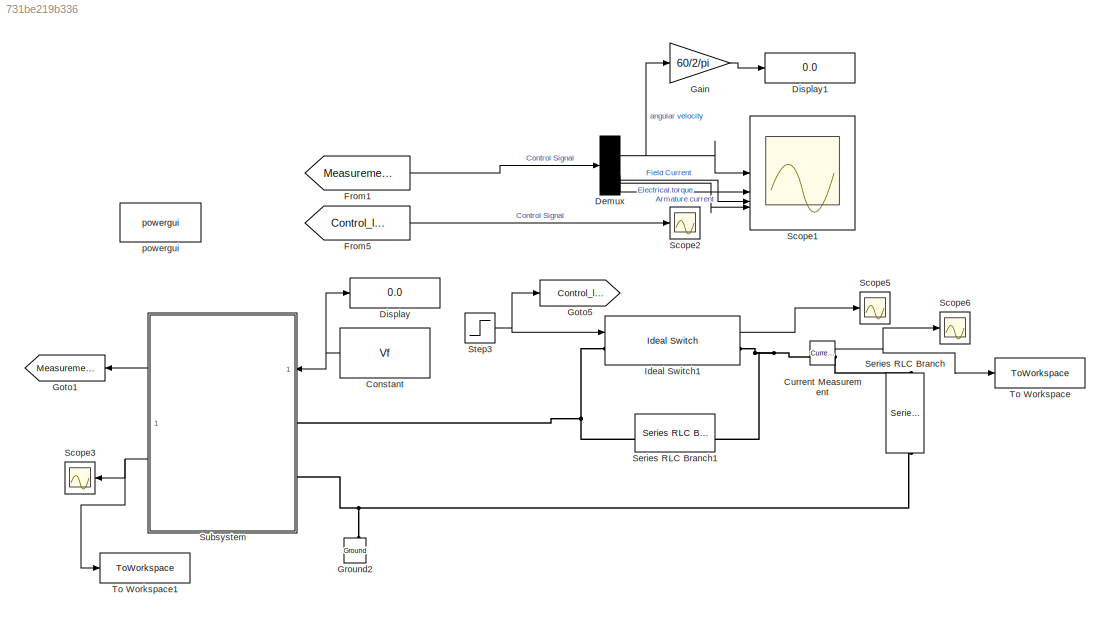
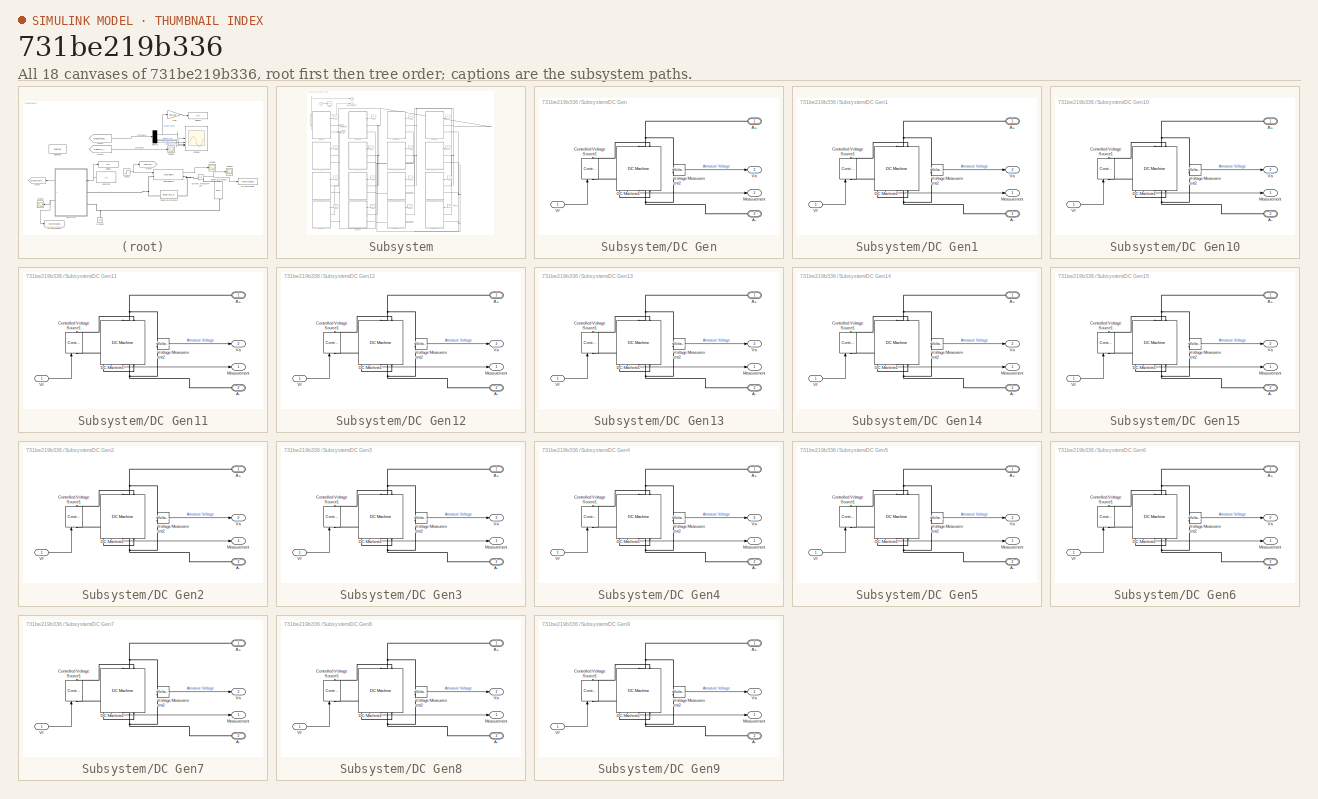
[diagram: thumbnail index - all 18 canvases of the model, root first then tree order]
MODEL slx_731be219b336
KIND model
CONFIG AbsTol = auto
CONFIG EnableMultiTasking = off
CONFIG FixedStep = auto
CONFIG MaxStep = auto
CONFIG MinStep = auto
CONFIG RelTol = 1e-3
CONFIG SampleTimeConstraint = Unconstrained
CONFIG SolverName = VariableStepAuto
CONFIG StartTime = 0.0
CONFIG StopTime = 30
BLOCK [Constant] Constant
  NameLocation = top
  Value = Vf
BLOCK [Reference] Current Measurement  REF=spsCurrentMeasurementLib/Current Measurement
  LibrarySourceBlock = sps_lib/Sensors and Measurements/Current Measurement
  SourceBlock = spsCurrentMeasurementLib/Current Measurement
  SourceType = Current Measurement
  UserDataPersistent = on
BLOCK [Demux] Demux
BLOCK [Display] Display
  Decimation = 1
BLOCK [Display] Display1
  Decimation = 1
BLOCK [From] From1
  GotoTag = Measurements
BLOCK [From] From5
  GotoTag = Control_load
BLOCK [Gain] Gain
  Gain = 60/2/pi
BLOCK [Goto] Goto1
  GotoTag = Measurements
  NameLocation = top
BLOCK [Goto] Goto5
  GotoTag = Control_load
BLOCK [Reference] Ground2  REF=spsGroundLib/Ground
  LibrarySourceBlock = sps_lib/Utilities/Ground
  NameLocation = right
  SourceBlock = spsGroundLib/Ground
  SourceType = Ground
BLOCK [Reference] Ideal Switch1  REF=spsIdealSwitchLib/Ideal Switch
  LibrarySourceBlock = sps_lib/Power Electronics/Ideal Switch
  SourceBlock = spsIdealSwitchLib/Ideal Switch
  SourceType = Ideal Switch
BLOCK [Scope] Scope1
  Floating = off
  NumInputPorts = 4
  ScopeSpecificationString = Simulink.scopes.TimeScopeBlockCfg('CurrentConfiguration', extmgr.ConfigurationSet(extmgr.Configuration('Core','General UI',true),extmgr.Configuration('Core','Source UI',true),extmgr.Configuration('Sources','WiredSimulink',true,'DataLoggingVariableName','ScopeData3'),extmgr.Configuration('Visuals','Time Domain',true,'SerializedDisplays',{struct('MinYLimReal','-23.9523','MaxYLimReal','235.37193','YL...<+3595ch>
BLOCK [Scope] Scope2
  Floating = off
  NumInputPorts = 1
  ScopeSpecificationString = Simulink.scopes.TimeScopeBlockCfg('CurrentConfiguration', extmgr.ConfigurationSet(extmgr.Configuration('Core','General UI',true),extmgr.Configuration('Core','Source UI',true),extmgr.Configuration('Sources','WiredSimulink',true),extmgr.Configuration('Visuals','Time Domain',true,'SerializedDisplays',{struct('MinYLimReal','-0.125','MaxYLimReal','1.125','YLabelReal','','MinYLimMag','0.00000','MaxYLimM...<+1395ch>
BLOCK [Scope] Scope3
  Floating = off
  NameLocation = top
  NumInputPorts = 1
  ScopeSpecificationString = Simulink.scopes.TimeScopeBlockCfg('CurrentConfiguration', extmgr.ConfigurationSet(extmgr.Configuration('Core','General UI',true),extmgr.Configuration('Core','Source UI',true),extmgr.Configuration('Sources','WiredSimulink',true,'DataLoggingVariableName','ScopeData4'),extmgr.Configuration('Visuals','Time Domain',true,'SerializedDisplays',{struct('MinYLimReal','-156.18825','MaxYLimReal','1405.69425',...<+1455ch>
BLOCK [Scope] Scope5
  Floating = off
  NumInputPorts = 1
  ScopeSpecificationString = Simulink.scopes.TimeScopeBlockCfg('CurrentConfiguration', extmgr.ConfigurationSet(extmgr.Configuration('Core','General UI',true),extmgr.Configuration('Core','Source UI',true),extmgr.Configuration('Sources','WiredSimulink',true,'DataLoggingVariableName','ScopeData1'),extmgr.Configuration('Visuals','Time Domain',true,'SerializedDisplays',{struct('MinYLimReal','-125.39667','MaxYLimReal','1128.57','YL...<+2131ch>
BLOCK [Scope] Scope6
  Floating = off
  NumInputPorts = 1
  ScopeSpecificationString = Simulink.scopes.TimeScopeBlockCfg('CurrentConfiguration', extmgr.ConfigurationSet(extmgr.Configuration('Core','General UI',true),extmgr.Configuration('Core','Source UI',true),extmgr.Configuration('Sources','WiredSimulink',true,'DataLoggingVariableName','ScopeData2'),extmgr.Configuration('Visuals','Time Domain',true,'SerializedDisplays',{struct('MinYLimReal','-3111.89178','MaxYLimReal','36101.86086...<+1476ch>
BLOCK [Reference] Series RLC Branch  REF=spsSeriesRLCBranchLib/Series RLC Branch
  LibrarySourceBlock = sps_lib/Passives/Series RLC Branch
  NameLocation = left
  SourceBlock = spsSeriesRLCBranchLib/Series RLC Branch
  SourceType = Series RLC Branch
BLOCK [Reference] Series RLC Branch1  REF=spsSeriesRLCBranchLib/Series RLC Branch
  LibrarySourceBlock = sps_lib/Passives/Series RLC Branch
  NameLocation = top
  SourceBlock = spsSeriesRLCBranchLib/Series RLC Branch
  SourceType = Series RLC Branch
BLOCK [Step] Step3
  SampleTime = 0
  Time = 12
  VectorParams1D = off
  ZeroCross = off
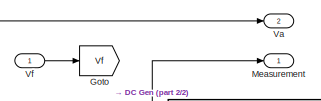
[diagram: Subsystem - part 1/2, top left region]
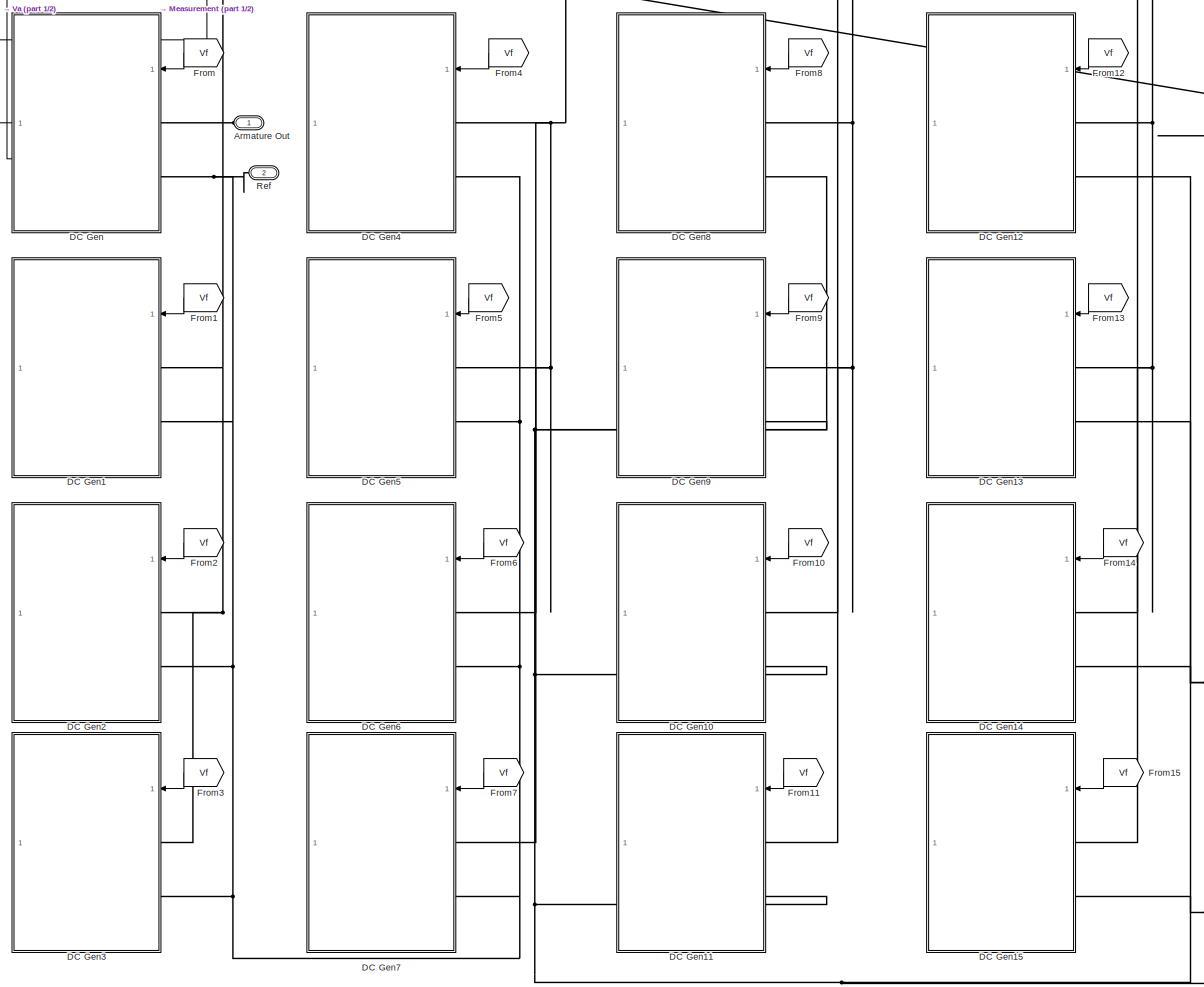
[diagram: Subsystem - part 2/2, most of the canvas]
BLOCK [SubSystem] Subsystem
  NameLocation = top
BLOCK [PMIOPort] Subsystem/Armature Out
  NameLocation = top
  Side = Left
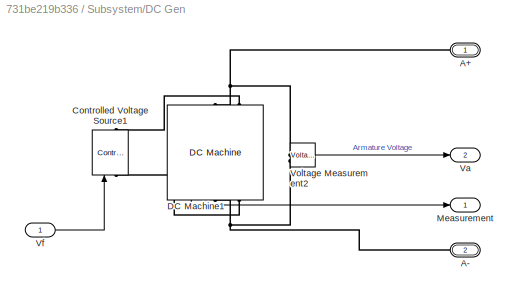
BLOCK [SubSystem] Subsystem/DC Gen
  NameLocation = top
BLOCK [PMIOPort] Subsystem/DC Gen/A+
  NameLocation = top
  Side = Left
BLOCK [PMIOPort] Subsystem/DC Gen/A-
  NameLocation = top
  Port = 2
  Side = Left
BLOCK [Reference] Subsystem/DC Gen/Controlled Voltage Source1  REF=spsControlledVoltageSourceLib/Controlled Voltage Source
  LibrarySourceBlock = sps_lib/Sources/Controlled Voltage Source
  NameLocation = right
  SourceBlock = spsControlledVoltageSourceLib/Controlled Voltage Source
  SourceType = Controlled Voltage Source
BLOCK [Reference] Subsystem/DC Gen/DC Machine1  REF=spsDCMachineLib/DC Machine
  LibrarySourceBlock = sps_lib/Electrical Machines/DC Machine
  NameLocation = left
  SourceBlock = spsDCMachineLib/DC Machine
  SourceType = DC machine
BLOCK [Outport] Subsystem/DC Gen/Measurement
BLOCK [Outport] Subsystem/DC Gen/Va
  Port = 2
BLOCK [Inport] Subsystem/DC Gen/Vf
BLOCK [Reference] Subsystem/DC Gen/Voltage Measurement2  REF=spsVoltageMeasurementLib/Voltage Measurement
  LibrarySourceBlock = sps_lib/Sensors and Measurements/Voltage Measurement
  SourceBlock = spsVoltageMeasurementLib/Voltage Measurement
  SourceType = Voltage Measurement
  UserDataPersistent = on
BLOCK [SubSystem] Subsystem/DC Gen1
  NameLocation = top
BLOCK [PMIOPort] Subsystem/DC Gen1/A+
  NameLocation = top
  Side = Left
BLOCK [PMIOPort] Subsystem/DC Gen1/A-
  NameLocation = top
  Port = 2
  Side = Left
BLOCK [Reference] Subsystem/DC Gen1/Controlled Voltage Source1  REF=spsControlledVoltageSourceLib/Controlled Voltage Source
  LibrarySourceBlock = sps_lib/Sources/Controlled Voltage Source
  NameLocation = right
  SourceBlock = spsControlledVoltageSourceLib/Controlled Voltage Source
  SourceType = Controlled Voltage Source
BLOCK [Reference] Subsystem/DC Gen1/DC Machine1  REF=spsDCMachineLib/DC Machine
  LibrarySourceBlock = sps_lib/Electrical Machines/DC Machine
  NameLocation = left
  SourceBlock = spsDCMachineLib/DC Machine
  SourceType = DC machine
BLOCK [Outport] Subsystem/DC Gen1/Measurement
BLOCK [Outport] Subsystem/DC Gen1/Va
  Port = 2
BLOCK [Inport] Subsystem/DC Gen1/Vf
BLOCK [Reference] Subsystem/DC Gen1/Voltage Measurement2  REF=spsVoltageMeasurementLib/Voltage Measurement
  LibrarySourceBlock = sps_lib/Sensors and Measurements/Voltage Measurement
  SourceBlock = spsVoltageMeasurementLib/Voltage Measurement
  SourceType = Voltage Measurement
  UserDataPersistent = on
BLOCK [SubSystem] Subsystem/DC Gen10
  NameLocation = top
BLOCK [PMIOPort] Subsystem/DC Gen10/A+
  NameLocation = top
  Side = Left
BLOCK [PMIOPort] Subsystem/DC Gen10/A-
  NameLocation = top
  Port = 2
  Side = Left
BLOCK [Reference] Subsystem/DC Gen10/Controlled Voltage Source1  REF=spsControlledVoltageSourceLib/Controlled Voltage Source
  LibrarySourceBlock = sps_lib/Sources/Controlled Voltage Source
  NameLocation = right
  SourceBlock = spsControlledVoltageSourceLib/Controlled Voltage Source
  SourceType = Controlled Voltage Source
BLOCK [Reference] Subsystem/DC Gen10/DC Machine1  REF=spsDCMachineLib/DC Machine
  LibrarySourceBlock = sps_lib/Electrical Machines/DC Machine
  NameLocation = left
  SourceBlock = spsDCMachineLib/DC Machine
  SourceType = DC machine
BLOCK [Outport] Subsystem/DC Gen10/Measurement
BLOCK [Outport] Subsystem/DC Gen10/Va
  Port = 2
BLOCK [Inport] Subsystem/DC Gen10/Vf
BLOCK [Reference] Subsystem/DC Gen10/Voltage Measurement2  REF=spsVoltageMeasurementLib/Voltage Measurement
  LibrarySourceBlock = sps_lib/Sensors and Measurements/Voltage Measurement
  SourceBlock = spsVoltageMeasurementLib/Voltage Measurement
  SourceType = Voltage Measurement
  UserDataPersistent = on
BLOCK [SubSystem] Subsystem/DC Gen11
  NameLocation = top
BLOCK [PMIOPort] Subsystem/DC Gen11/A+
  NameLocation = top
  Side = Left
BLOCK [PMIOPort] Subsystem/DC Gen11/A-
  NameLocation = top
  Port = 2
  Side = Left
BLOCK [Reference] Subsystem/DC Gen11/Controlled Voltage Source1  REF=spsControlledVoltageSourceLib/Controlled Voltage Source
  LibrarySourceBlock = sps_lib/Sources/Controlled Voltage Source
  NameLocation = right
  SourceBlock = spsControlledVoltageSourceLib/Controlled Voltage Source
  SourceType = Controlled Voltage Source
BLOCK [Reference] Subsystem/DC Gen11/DC Machine1  REF=spsDCMachineLib/DC Machine
  LibrarySourceBlock = sps_lib/Electrical Machines/DC Machine
  NameLocation = left
  SourceBlock = spsDCMachineLib/DC Machine
  SourceType = DC machine
BLOCK [Outport] Subsystem/DC Gen11/Measurement
BLOCK [Outport] Subsystem/DC Gen11/Va
  Port = 2
BLOCK [Inport] Subsystem/DC Gen11/Vf
BLOCK [Reference] Subsystem/DC Gen11/Voltage Measurement2  REF=spsVoltageMeasurementLib/Voltage Measurement
  LibrarySourceBlock = sps_lib/Sensors and Measurements/Voltage Measurement
  SourceBlock = spsVoltageMeasurementLib/Voltage Measurement
  SourceType = Voltage Measurement
  UserDataPersistent = on
BLOCK [SubSystem] Subsystem/DC Gen12
  NameLocation = top
BLOCK [PMIOPort] Subsystem/DC Gen12/A+
  NameLocation = top
  Side = Left
BLOCK [PMIOPort] Subsystem/DC Gen12/A-
  NameLocation = top
  Port = 2
  Side = Left
BLOCK [Reference] Subsystem/DC Gen12/Controlled Voltage Source1  REF=spsControlledVoltageSourceLib/Controlled Voltage Source
  LibrarySourceBlock = sps_lib/Sources/Controlled Voltage Source
  NameLocation = right
  SourceBlock = spsControlledVoltageSourceLib/Controlled Voltage Source
  SourceType = Controlled Voltage Source
BLOCK [Reference] Subsystem/DC Gen12/DC Machine1  REF=spsDCMachineLib/DC Machine
  LibrarySourceBlock = sps_lib/Electrical Machines/DC Machine
  NameLocation = left
  SourceBlock = spsDCMachineLib/DC Machine
  SourceType = DC machine
BLOCK [Outport] Subsystem/DC Gen12/Measurement
BLOCK [Outport] Subsystem/DC Gen12/Va
  Port = 2
BLOCK [Inport] Subsystem/DC Gen12/Vf
BLOCK [Reference] Subsystem/DC Gen12/Voltage Measurement2  REF=spsVoltageMeasurementLib/Voltage Measurement
  LibrarySourceBlock = sps_lib/Sensors and Measurements/Voltage Measurement
  SourceBlock = spsVoltageMeasurementLib/Voltage Measurement
  SourceType = Voltage Measurement
  UserDataPersistent = on
BLOCK [SubSystem] Subsystem/DC Gen13
  NameLocation = top
BLOCK [PMIOPort] Subsystem/DC Gen13/A+
  NameLocation = top
  Side = Left
BLOCK [PMIOPort] Subsystem/DC Gen13/A-
  NameLocation = top
  Port = 2
  Side = Left
BLOCK [Reference] Subsystem/DC Gen13/Controlled Voltage Source1  REF=spsControlledVoltageSourceLib/Controlled Voltage Source
  LibrarySourceBlock = sps_lib/Sources/Controlled Voltage Source
  NameLocation = right
  SourceBlock = spsControlledVoltageSourceLib/Controlled Voltage Source
  SourceType = Controlled Voltage Source
BLOCK [Reference] Subsystem/DC Gen13/DC Machine1  REF=spsDCMachineLib/DC Machine
  LibrarySourceBlock = sps_lib/Electrical Machines/DC Machine
  NameLocation = left
  SourceBlock = spsDCMachineLib/DC Machine
  SourceType = DC machine
BLOCK [Outport] Subsystem/DC Gen13/Measurement
BLOCK [Outport] Subsystem/DC Gen13/Va
  Port = 2
BLOCK [Inport] Subsystem/DC Gen13/Vf
BLOCK [Reference] Subsystem/DC Gen13/Voltage Measurement2  REF=spsVoltageMeasurementLib/Voltage Measurement
  LibrarySourceBlock = sps_lib/Sensors and Measurements/Voltage Measurement
  SourceBlock = spsVoltageMeasurementLib/Voltage Measurement
  SourceType = Voltage Measurement
  UserDataPersistent = on
BLOCK [SubSystem] Subsystem/DC Gen14
  NameLocation = top
BLOCK [PMIOPort] Subsystem/DC Gen14/A+
  NameLocation = top
  Side = Left
BLOCK [PMIOPort] Subsystem/DC Gen14/A-
  NameLocation = top
  Port = 2
  Side = Left
BLOCK [Reference] Subsystem/DC Gen14/Controlled Voltage Source1  REF=spsControlledVoltageSourceLib/Controlled Voltage Source
  LibrarySourceBlock = sps_lib/Sources/Controlled Voltage Source
  NameLocation = right
  SourceBlock = spsControlledVoltageSourceLib/Controlled Voltage Source
  SourceType = Controlled Voltage Source
BLOCK [Reference] Subsystem/DC Gen14/DC Machine1  REF=spsDCMachineLib/DC Machine
  LibrarySourceBlock = sps_lib/Electrical Machines/DC Machine
  NameLocation = left
  SourceBlock = spsDCMachineLib/DC Machine
  SourceType = DC machine
BLOCK [Outport] Subsystem/DC Gen14/Measurement
BLOCK [Outport] Subsystem/DC Gen14/Va
  Port = 2
BLOCK [Inport] Subsystem/DC Gen14/Vf
BLOCK [Reference] Subsystem/DC Gen14/Voltage Measurement2  REF=spsVoltageMeasurementLib/Voltage Measurement
  LibrarySourceBlock = sps_lib/Sensors and Measurements/Voltage Measurement
  SourceBlock = spsVoltageMeasurementLib/Voltage Measurement
  SourceType = Voltage Measurement
  UserDataPersistent = on
BLOCK [SubSystem] Subsystem/DC Gen15
  NameLocation = top
BLOCK [PMIOPort] Subsystem/DC Gen15/A+
  NameLocation = top
  Side = Left
BLOCK [PMIOPort] Subsystem/DC Gen15/A-
  NameLocation = top
  Port = 2
  Side = Left
BLOCK [Reference] Subsystem/DC Gen15/Controlled Voltage Source1  REF=spsControlledVoltageSourceLib/Controlled Voltage Source
  LibrarySourceBlock = sps_lib/Sources/Controlled Voltage Source
  NameLocation = right
  SourceBlock = spsControlledVoltageSourceLib/Controlled Voltage Source
  SourceType = Controlled Voltage Source
BLOCK [Reference] Subsystem/DC Gen15/DC Machine1  REF=spsDCMachineLib/DC Machine
  LibrarySourceBlock = sps_lib/Electrical Machines/DC Machine
  NameLocation = left
  SourceBlock = spsDCMachineLib/DC Machine
  SourceType = DC machine
BLOCK [Outport] Subsystem/DC Gen15/Measurement
BLOCK [Outport] Subsystem/DC Gen15/Va
  Port = 2
BLOCK [Inport] Subsystem/DC Gen15/Vf
BLOCK [Reference] Subsystem/DC Gen15/Voltage Measurement2  REF=spsVoltageMeasurementLib/Voltage Measurement
  LibrarySourceBlock = sps_lib/Sensors and Measurements/Voltage Measurement
  SourceBlock = spsVoltageMeasurementLib/Voltage Measurement
  SourceType = Voltage Measurement
  UserDataPersistent = on
BLOCK [SubSystem] Subsystem/DC Gen2
  NameLocation = top
BLOCK [PMIOPort] Subsystem/DC Gen2/A+
  NameLocation = top
  Side = Left
BLOCK [PMIOPort] Subsystem/DC Gen2/A-
  NameLocation = top
  Port = 2
  Side = Left
BLOCK [Reference] Subsystem/DC Gen2/Controlled Voltage Source1  REF=spsControlledVoltageSourceLib/Controlled Voltage Source
  LibrarySourceBlock = sps_lib/Sources/Controlled Voltage Source
  NameLocation = right
  SourceBlock = spsControlledVoltageSourceLib/Controlled Voltage Source
  SourceType = Controlled Voltage Source
BLOCK [Reference] Subsystem/DC Gen2/DC Machine1  REF=spsDCMachineLib/DC Machine
  LibrarySourceBlock = sps_lib/Electrical Machines/DC Machine
  NameLocation = left
  SourceBlock = spsDCMachineLib/DC Machine
  SourceType = DC machine
BLOCK [Outport] Subsystem/DC Gen2/Measurement
BLOCK [Outport] Subsystem/DC Gen2/Va
  Port = 2
BLOCK [Inport] Subsystem/DC Gen2/Vf
BLOCK [Reference] Subsystem/DC Gen2/Voltage Measurement2  REF=spsVoltageMeasurementLib/Voltage Measurement
  LibrarySourceBlock = sps_lib/Sensors and Measurements/Voltage Measurement
  SourceBlock = spsVoltageMeasurementLib/Voltage Measurement
  SourceType = Voltage Measurement
  UserDataPersistent = on
BLOCK [SubSystem] Subsystem/DC Gen3
  NameLocation = top
BLOCK [PMIOPort] Subsystem/DC Gen3/A+
  NameLocation = top
  Side = Left
BLOCK [PMIOPort] Subsystem/DC Gen3/A-
  NameLocation = top
  Port = 2
  Side = Left
BLOCK [Reference] Subsystem/DC Gen3/Controlled Voltage Source1  REF=spsControlledVoltageSourceLib/Controlled Voltage Source
  LibrarySourceBlock = sps_lib/Sources/Controlled Voltage Source
  NameLocation = right
  SourceBlock = spsControlledVoltageSourceLib/Controlled Voltage Source
  SourceType = Controlled Voltage Source
BLOCK [Reference] Subsystem/DC Gen3/DC Machine1  REF=spsDCMachineLib/DC Machine
  LibrarySourceBlock = sps_lib/Electrical Machines/DC Machine
  NameLocation = left
  SourceBlock = spsDCMachineLib/DC Machine
  SourceType = DC machine
BLOCK [Outport] Subsystem/DC Gen3/Measurement
BLOCK [Outport] Subsystem/DC Gen3/Va
  Port = 2
BLOCK [Inport] Subsystem/DC Gen3/Vf
BLOCK [Reference] Subsystem/DC Gen3/Voltage Measurement2  REF=spsVoltageMeasurementLib/Voltage Measurement
  LibrarySourceBlock = sps_lib/Sensors and Measurements/Voltage Measurement
  SourceBlock = spsVoltageMeasurementLib/Voltage Measurement
  SourceType = Voltage Measurement
  UserDataPersistent = on
BLOCK [SubSystem] Subsystem/DC Gen4
  NameLocation = top
BLOCK [PMIOPort] Subsystem/DC Gen4/A+
  NameLocation = top
  Side = Left
BLOCK [PMIOPort] Subsystem/DC Gen4/A-
  NameLocation = top
  Port = 2
  Side = Left
BLOCK [Reference] Subsystem/DC Gen4/Controlled Voltage Source1  REF=spsControlledVoltageSourceLib/Controlled Voltage Source
  LibrarySourceBlock = sps_lib/Sources/Controlled Voltage Source
  NameLocation = right
  SourceBlock = spsControlledVoltageSourceLib/Controlled Voltage Source
  SourceType = Controlled Voltage Source
BLOCK [Reference] Subsystem/DC Gen4/DC Machine1  REF=spsDCMachineLib/DC Machine
  LibrarySourceBlock = sps_lib/Electrical Machines/DC Machine
  NameLocation = left
  SourceBlock = spsDCMachineLib/DC Machine
  SourceType = DC machine
BLOCK [Outport] Subsystem/DC Gen4/Measurement
BLOCK [Outport] Subsystem/DC Gen4/Va
  Port = 2
BLOCK [Inport] Subsystem/DC Gen4/Vf
BLOCK [Reference] Subsystem/DC Gen4/Voltage Measurement2  REF=spsVoltageMeasurementLib/Voltage Measurement
  LibrarySourceBlock = sps_lib/Sensors and Measurements/Voltage Measurement
  SourceBlock = spsVoltageMeasurementLib/Voltage Measurement
  SourceType = Voltage Measurement
  UserDataPersistent = on
BLOCK [SubSystem] Subsystem/DC Gen5
  NameLocation = top
BLOCK [PMIOPort] Subsystem/DC Gen5/A+
  NameLocation = top
  Side = Left
BLOCK [PMIOPort] Subsystem/DC Gen5/A-
  NameLocation = top
  Port = 2
  Side = Left
BLOCK [Reference] Subsystem/DC Gen5/Controlled Voltage Source1  REF=spsControlledVoltageSourceLib/Controlled Voltage Source
  LibrarySourceBlock = sps_lib/Sources/Controlled Voltage Source
  NameLocation = right
  SourceBlock = spsControlledVoltageSourceLib/Controlled Voltage Source
  SourceType = Controlled Voltage Source
BLOCK [Reference] Subsystem/DC Gen5/DC Machine1  REF=spsDCMachineLib/DC Machine
  LibrarySourceBlock = sps_lib/Electrical Machines/DC Machine
  NameLocation = left
  SourceBlock = spsDCMachineLib/DC Machine
  SourceType = DC machine
BLOCK [Outport] Subsystem/DC Gen5/Measurement
BLOCK [Outport] Subsystem/DC Gen5/Va
  Port = 2
BLOCK [Inport] Subsystem/DC Gen5/Vf
BLOCK [Reference] Subsystem/DC Gen5/Voltage Measurement2  REF=spsVoltageMeasurementLib/Voltage Measurement
  LibrarySourceBlock = sps_lib/Sensors and Measurements/Voltage Measurement
  SourceBlock = spsVoltageMeasurementLib/Voltage Measurement
  SourceType = Voltage Measurement
  UserDataPersistent = on
BLOCK [SubSystem] Subsystem/DC Gen6
  NameLocation = top
BLOCK [PMIOPort] Subsystem/DC Gen6/A+
  NameLocation = top
  Side = Left
BLOCK [PMIOPort] Subsystem/DC Gen6/A-
  NameLocation = top
  Port = 2
  Side = Left
BLOCK [Reference] Subsystem/DC Gen6/Controlled Voltage Source1  REF=spsControlledVoltageSourceLib/Controlled Voltage Source
  LibrarySourceBlock = sps_lib/Sources/Controlled Voltage Source
  NameLocation = right
  SourceBlock = spsControlledVoltageSourceLib/Controlled Voltage Source
  SourceType = Controlled Voltage Source
BLOCK [Reference] Subsystem/DC Gen6/DC Machine1  REF=spsDCMachineLib/DC Machine
  LibrarySourceBlock = sps_lib/Electrical Machines/DC Machine
  NameLocation = left
  SourceBlock = spsDCMachineLib/DC Machine
  SourceType = DC machine
BLOCK [Outport] Subsystem/DC Gen6/Measurement
BLOCK [Outport] Subsystem/DC Gen6/Va
  Port = 2
BLOCK [Inport] Subsystem/DC Gen6/Vf
BLOCK [Reference] Subsystem/DC Gen6/Voltage Measurement2  REF=spsVoltageMeasurementLib/Voltage Measurement
  LibrarySourceBlock = sps_lib/Sensors and Measurements/Voltage Measurement
  SourceBlock = spsVoltageMeasurementLib/Voltage Measurement
  SourceType = Voltage Measurement
  UserDataPersistent = on
BLOCK [SubSystem] Subsystem/DC Gen7
  NameLocation = top
BLOCK [PMIOPort] Subsystem/DC Gen7/A+
  NameLocation = top
  Side = Left
BLOCK [PMIOPort] Subsystem/DC Gen7/A-
  NameLocation = top
  Port = 2
  Side = Left
BLOCK [Reference] Subsystem/DC Gen7/Controlled Voltage Source1  REF=spsControlledVoltageSourceLib/Controlled Voltage Source
  LibrarySourceBlock = sps_lib/Sources/Controlled Voltage Source
  NameLocation = right
  SourceBlock = spsControlledVoltageSourceLib/Controlled Voltage Source
  SourceType = Controlled Voltage Source
BLOCK [Reference] Subsystem/DC Gen7/DC Machine1  REF=spsDCMachineLib/DC Machine
  LibrarySourceBlock = sps_lib/Electrical Machines/DC Machine
  NameLocation = left
  SourceBlock = spsDCMachineLib/DC Machine
  SourceType = DC machine
BLOCK [Outport] Subsystem/DC Gen7/Measurement
BLOCK [Outport] Subsystem/DC Gen7/Va
  Port = 2
BLOCK [Inport] Subsystem/DC Gen7/Vf
BLOCK [Reference] Subsystem/DC Gen7/Voltage Measurement2  REF=spsVoltageMeasurementLib/Voltage Measurement
  LibrarySourceBlock = sps_lib/Sensors and Measurements/Voltage Measurement
  SourceBlock = spsVoltageMeasurementLib/Voltage Measurement
  SourceType = Voltage Measurement
  UserDataPersistent = on
BLOCK [SubSystem] Subsystem/DC Gen8
  NameLocation = top
BLOCK [PMIOPort] Subsystem/DC Gen8/A+
  NameLocation = top
  Side = Left
BLOCK [PMIOPort] Subsystem/DC Gen8/A-
  NameLocation = top
  Port = 2
  Side = Left
BLOCK [Reference] Subsystem/DC Gen8/Controlled Voltage Source1  REF=spsControlledVoltageSourceLib/Controlled Voltage Source
  LibrarySourceBlock = sps_lib/Sources/Controlled Voltage Source
  NameLocation = right
  SourceBlock = spsControlledVoltageSourceLib/Controlled Voltage Source
  SourceType = Controlled Voltage Source
BLOCK [Reference] Subsystem/DC Gen8/DC Machine1  REF=spsDCMachineLib/DC Machine
  LibrarySourceBlock = sps_lib/Electrical Machines/DC Machine
  NameLocation = left
  SourceBlock = spsDCMachineLib/DC Machine
  SourceType = DC machine
BLOCK [Outport] Subsystem/DC Gen8/Measurement
BLOCK [Outport] Subsystem/DC Gen8/Va
  Port = 2
BLOCK [Inport] Subsystem/DC Gen8/Vf
BLOCK [Reference] Subsystem/DC Gen8/Voltage Measurement2  REF=spsVoltageMeasurementLib/Voltage Measurement
  LibrarySourceBlock = sps_lib/Sensors and Measurements/Voltage Measurement
  SourceBlock = spsVoltageMeasurementLib/Voltage Measurement
  SourceType = Voltage Measurement
  UserDataPersistent = on
BLOCK [SubSystem] Subsystem/DC Gen9
  NameLocation = top
BLOCK [PMIOPort] Subsystem/DC Gen9/A+
  NameLocation = top
  Side = Left
BLOCK [PMIOPort] Subsystem/DC Gen9/A-
  NameLocation = top
  Port = 2
  Side = Left
BLOCK [Reference] Subsystem/DC Gen9/Controlled Voltage Source1  REF=spsControlledVoltageSourceLib/Controlled Voltage Source
  LibrarySourceBlock = sps_lib/Sources/Controlled Voltage Source
  NameLocation = right
  SourceBlock = spsControlledVoltageSourceLib/Controlled Voltage Source
  SourceType = Controlled Voltage Source
BLOCK [Reference] Subsystem/DC Gen9/DC Machine1  REF=spsDCMachineLib/DC Machine
  LibrarySourceBlock = sps_lib/Electrical Machines/DC Machine
  NameLocation = left
  SourceBlock = spsDCMachineLib/DC Machine
  SourceType = DC machine
BLOCK [Outport] Subsystem/DC Gen9/Measurement
BLOCK [Outport] Subsystem/DC Gen9/Va
  Port = 2
BLOCK [Inport] Subsystem/DC Gen9/Vf
BLOCK [Reference] Subsystem/DC Gen9/Voltage Measurement2  REF=spsVoltageMeasurementLib/Voltage Measurement
  LibrarySourceBlock = sps_lib/Sensors and Measurements/Voltage Measurement
  SourceBlock = spsVoltageMeasurementLib/Voltage Measurement
  SourceType = Voltage Measurement
  UserDataPersistent = on
BLOCK [From] Subsystem/From
  GotoTag = Vf
  NameLocation = top
BLOCK [From] Subsystem/From1
  GotoTag = Vf
  NameLocation = top
BLOCK [From] Subsystem/From10
  GotoTag = Vf
  NameLocation = top
BLOCK [From] Subsystem/From11
  GotoTag = Vf
  NameLocation = top
BLOCK [From] Subsystem/From12
  GotoTag = Vf
  NameLocation = top
BLOCK [From] Subsystem/From13
  GotoTag = Vf
  NameLocation = top
BLOCK [From] Subsystem/From14
  GotoTag = Vf
  NameLocation = top
BLOCK [From] Subsystem/From15
  GotoTag = Vf
  NameLocation = top
BLOCK [From] Subsystem/From2
  GotoTag = Vf
  NameLocation = top
BLOCK [From] Subsystem/From3
  GotoTag = Vf
  NameLocation = top
BLOCK [From] Subsystem/From4
  GotoTag = Vf
  NameLocation = top
BLOCK [From] Subsystem/From5
  GotoTag = Vf
  NameLocation = top
BLOCK [From] Subsystem/From6
  GotoTag = Vf
  NameLocation = top
BLOCK [From] Subsystem/From7
  GotoTag = Vf
  NameLocation = top
BLOCK [From] Subsystem/From8
  GotoTag = Vf
  NameLocation = top
BLOCK [From] Subsystem/From9
  GotoTag = Vf
  NameLocation = top
BLOCK [Goto] Subsystem/Goto
  GotoTag = Vf
BLOCK [Outport] Subsystem/Measurement
BLOCK [PMIOPort] Subsystem/Ref
  NameLocation = top
  Port = 2
  Side = Left
BLOCK [Outport] Subsystem/Va
  Port = 2
BLOCK [Inport] Subsystem/Vf
BLOCK [ToWorkspace] To Workspace
  FixptAsFi = on
  MaxDataPoints = inf
  SampleTime = -1
  SaveFormat = Timeseries
  VariableName = Io
BLOCK [ToWorkspace] To Workspace1
  FixptAsFi = on
  MaxDataPoints = inf
  SampleTime = -1
  SaveFormat = Timeseries
  VariableName = Vo
BLOCK [Reference] powergui  REF=sps_lib/powergui
  LibrarySourceBlock = sps_lib/powergui
  Priority = 1
  SourceBlock = sps_lib/powergui
  SourceType = PSB option menu block
NET Constant:1 -> Display:1, Subsystem:1
NET Current Measurement:1 -> Scope6:1, To Workspace:1
NET Demux:1 -> Gain:1, Scope1:1
LINE Demux:2 -> Scope1:2
LINE Demux:3 -> Scope1:3
LINE Demux:4 -> Scope1:4
LINE From1:1 -> Demux:1
LINE From5:1 -> Scope2:1
LINE Gain:1 -> Display1:1
LINE Ideal Switch1:1 -> Scope5:1
NET Step3:1 -> Goto5:1, Ideal Switch1:1
LINE Subsystem/DC Gen/DC Machine1:1 -> Subsystem/DC Gen/Measurement:1
LINE Subsystem/DC Gen/Vf:1 -> Subsystem/DC Gen/Controlled Voltage Source1:1
LINE Subsystem/DC Gen/Voltage Measurement2:1 -> Subsystem/DC Gen/Va:1
LINE Subsystem/DC Gen1/DC Machine1:1 -> Subsystem/DC Gen1/Measurement:1
LINE Subsystem/DC Gen1/Vf:1 -> Subsystem/DC Gen1/Controlled Voltage Source1:1
LINE Subsystem/DC Gen1/Voltage Measurement2:1 -> Subsystem/DC Gen1/Va:1
LINE Subsystem/DC Gen10/DC Machine1:1 -> Subsystem/DC Gen10/Measurement:1
LINE Subsystem/DC Gen10/Vf:1 -> Subsystem/DC Gen10/Controlled Voltage Source1:1
LINE Subsystem/DC Gen10/Voltage Measurement2:1 -> Subsystem/DC Gen10/Va:1
LINE Subsystem/DC Gen11/DC Machine1:1 -> Subsystem/DC Gen11/Measurement:1
LINE Subsystem/DC Gen11/Vf:1 -> Subsystem/DC Gen11/Controlled Voltage Source1:1
LINE Subsystem/DC Gen11/Voltage Measurement2:1 -> Subsystem/DC Gen11/Va:1
LINE Subsystem/DC Gen12/DC Machine1:1 -> Subsystem/DC Gen12/Measurement:1
LINE Subsystem/DC Gen12/Vf:1 -> Subsystem/DC Gen12/Controlled Voltage Source1:1
LINE Subsystem/DC Gen12/Voltage Measurement2:1 -> Subsystem/DC Gen12/Va:1
LINE Subsystem/DC Gen13/DC Machine1:1 -> Subsystem/DC Gen13/Measurement:1
LINE Subsystem/DC Gen13/Vf:1 -> Subsystem/DC Gen13/Controlled Voltage Source1:1
LINE Subsystem/DC Gen13/Voltage Measurement2:1 -> Subsystem/DC Gen13/Va:1
LINE Subsystem/DC Gen14/DC Machine1:1 -> Subsystem/DC Gen14/Measurement:1
LINE Subsystem/DC Gen14/Vf:1 -> Subsystem/DC Gen14/Controlled Voltage Source1:1
LINE Subsystem/DC Gen14/Voltage Measurement2:1 -> Subsystem/DC Gen14/Va:1
LINE Subsystem/DC Gen15/DC Machine1:1 -> Subsystem/DC Gen15/Measurement:1
LINE Subsystem/DC Gen15/Vf:1 -> Subsystem/DC Gen15/Controlled Voltage Source1:1
LINE Subsystem/DC Gen15/Voltage Measurement2:1 -> Subsystem/DC Gen15/Va:1
LINE Subsystem/DC Gen2/DC Machine1:1 -> Subsystem/DC Gen2/Measurement:1
LINE Subsystem/DC Gen2/Vf:1 -> Subsystem/DC Gen2/Controlled Voltage Source1:1
LINE Subsystem/DC Gen2/Voltage Measurement2:1 -> Subsystem/DC Gen2/Va:1
LINE Subsystem/DC Gen3/DC Machine1:1 -> Subsystem/DC Gen3/Measurement:1
LINE Subsystem/DC Gen3/Vf:1 -> Subsystem/DC Gen3/Controlled Voltage Source1:1
LINE Subsystem/DC Gen3/Voltage Measurement2:1 -> Subsystem/DC Gen3/Va:1
LINE Subsystem/DC Gen4/DC Machine1:1 -> Subsystem/DC Gen4/Measurement:1
LINE Subsystem/DC Gen4/Vf:1 -> Subsystem/DC Gen4/Controlled Voltage Source1:1
LINE Subsystem/DC Gen4/Voltage Measurement2:1 -> Subsystem/DC Gen4/Va:1
LINE Subsystem/DC Gen5/DC Machine1:1 -> Subsystem/DC Gen5/Measurement:1
LINE Subsystem/DC Gen5/Vf:1 -> Subsystem/DC Gen5/Controlled Voltage Source1:1
LINE Subsystem/DC Gen5/Voltage Measurement2:1 -> Subsystem/DC Gen5/Va:1
LINE Subsystem/DC Gen6/DC Machine1:1 -> Subsystem/DC Gen6/Measurement:1
LINE Subsystem/DC Gen6/Vf:1 -> Subsystem/DC Gen6/Controlled Voltage Source1:1
LINE Subsystem/DC Gen6/Voltage Measurement2:1 -> Subsystem/DC Gen6/Va:1
LINE Subsystem/DC Gen7/DC Machine1:1 -> Subsystem/DC Gen7/Measurement:1
LINE Subsystem/DC Gen7/Vf:1 -> Subsystem/DC Gen7/Controlled Voltage Source1:1
LINE Subsystem/DC Gen7/Voltage Measurement2:1 -> Subsystem/DC Gen7/Va:1
LINE Subsystem/DC Gen8/DC Machine1:1 -> Subsystem/DC Gen8/Measurement:1
LINE Subsystem/DC Gen8/Vf:1 -> Subsystem/DC Gen8/Controlled Voltage Source1:1
LINE Subsystem/DC Gen8/Voltage Measurement2:1 -> Subsystem/DC Gen8/Va:1
LINE Subsystem/DC Gen9/DC Machine1:1 -> Subsystem/DC Gen9/Measurement:1
LINE Subsystem/DC Gen9/Vf:1 -> Subsystem/DC Gen9/Controlled Voltage Source1:1
LINE Subsystem/DC Gen9/Voltage Measurement2:1 -> Subsystem/DC Gen9/Va:1
LINE Subsystem/DC Gen:1 -> Subsystem/Measurement:1
LINE Subsystem/DC Gen:2 -> Subsystem/Va:1
LINE Subsystem/From10:1 -> Subsystem/DC Gen10:1
LINE Subsystem/From11:1 -> Subsystem/DC Gen11:1
LINE Subsystem/From12:1 -> Subsystem/DC Gen12:1
LINE Subsystem/From13:1 -> Subsystem/DC Gen13:1
LINE Subsystem/From14:1 -> Subsystem/DC Gen14:1
LINE Subsystem/From15:1 -> Subsystem/DC Gen15:1
LINE Subsystem/From1:1 -> Subsystem/DC Gen1:1
LINE Subsystem/From2:1 -> Subsystem/DC Gen2:1
LINE Subsystem/From3:1 -> Subsystem/DC Gen3:1
LINE Subsystem/From4:1 -> Subsystem/DC Gen4:1
LINE Subsystem/From5:1 -> Subsystem/DC Gen5:1
LINE Subsystem/From6:1 -> Subsystem/DC Gen6:1
LINE Subsystem/From7:1 -> Subsystem/DC Gen7:1
LINE Subsystem/From8:1 -> Subsystem/DC Gen8:1
LINE Subsystem/From9:1 -> Subsystem/DC Gen9:1
LINE Subsystem/From:1 -> Subsystem/DC Gen:1
LINE Subsystem/Vf:1 -> Subsystem/Goto:1
LINE Subsystem:1 -> Goto1:1
NET Subsystem:2 -> Scope3:1, To Workspace1:1
PNET net1: Current Measurement:LConn1 -- Ideal Switch1:RConn1 -- Series RLC Branch1:LConn1
PLINE Current Measurement:RConn1 -- Series RLC Branch:LConn1
PNET net2: Ground2:LConn1 -- Series RLC Branch:RConn1 -- Subsystem:LConn2
PNET net3: Ideal Switch1:LConn1 -- Series RLC Branch1:RConn1 -- Subsystem:LConn1
PNET net4: Subsystem/Armature Out:RConn1 -- Subsystem/DC Gen10:LConn1 -- Subsystem/DC Gen11:LConn1 -- Subsystem/DC Gen12:LConn1 -- Subsystem/DC Gen13:LConn1 -- Subsystem/DC Gen14:LConn1 -- Subsystem/DC Gen15:LConn1 -- Subsystem/DC Gen1:LConn1 -- Subsystem/DC Gen2:LConn1 -- Subsystem/DC Gen3:LConn1 -- Subsystem/DC Gen4:LConn1 -- Subsystem/DC Gen5:LConn1 -- Subsystem/DC Gen6:LConn1 -- Subsystem/DC Gen7:LConn1 -- Subsystem/DC Gen8:LConn1 -- Subsystem/DC Gen9:LConn1 -- Subsystem/DC Gen:LConn1
PNET net5: Subsystem/DC Gen/A+:RConn1 -- Subsystem/DC Gen/DC Machine1:LConn1 -- Subsystem/DC Gen/Voltage Measurement2:LConn1
PNET net6: Subsystem/DC Gen/A-:RConn1 -- Subsystem/DC Gen/DC Machine1:RConn1 -- Subsystem/DC Gen/Voltage Measurement2:LConn2
PLINE Subsystem/DC Gen/Controlled Voltage Source1:LConn1 -- Subsystem/DC Gen/DC Machine1:RConn2
PLINE Subsystem/DC Gen/Controlled Voltage Source1:RConn1 -- Subsystem/DC Gen/DC Machine1:LConn2
PNET net7: Subsystem/DC Gen1/A+:RConn1 -- Subsystem/DC Gen1/DC Machine1:LConn1 -- Subsystem/DC Gen1/Voltage Measurement2:LConn1
PNET net8: Subsystem/DC Gen1/A-:RConn1 -- Subsystem/DC Gen1/DC Machine1:RConn1 -- Subsystem/DC Gen1/Voltage Measurement2:LConn2
PLINE Subsystem/DC Gen1/Controlled Voltage Source1:LConn1 -- Subsystem/DC Gen1/DC Machine1:RConn2
PLINE Subsystem/DC Gen1/Controlled Voltage Source1:RConn1 -- Subsystem/DC Gen1/DC Machine1:LConn2
PNET net9: Subsystem/DC Gen10/A+:RConn1 -- Subsystem/DC Gen10/DC Machine1:LConn1 -- Subsystem/DC Gen10/Voltage Measurement2:LConn1
PNET net10: Subsystem/DC Gen10/A-:RConn1 -- Subsystem/DC Gen10/DC Machine1:RConn1 -- Subsystem/DC Gen10/Voltage Measurement2:LConn2
PLINE Subsystem/DC Gen10/Controlled Voltage Source1:LConn1 -- Subsystem/DC Gen10/DC Machine1:RConn2
PLINE Subsystem/DC Gen10/Controlled Voltage Source1:RConn1 -- Subsystem/DC Gen10/DC Machine1:LConn2
PNET net11: Subsystem/DC Gen10:LConn2 -- Subsystem/DC Gen11:LConn2 -- Subsystem/DC Gen12:LConn2 -- Subsystem/DC Gen13:LConn2 -- Subsystem/DC Gen14:LConn2 -- Subsystem/DC Gen15:LConn2 -- Subsystem/DC Gen1:LConn2 -- Subsystem/DC Gen2:LConn2 -- Subsystem/DC Gen3:LConn2 -- Subsystem/DC Gen4:LConn2 -- Subsystem/DC Gen5:LConn2 -- Subsystem/DC Gen6:LConn2 -- Subsystem/DC Gen7:LConn2 -- Subsystem/DC Gen8:LConn2 -- Subsystem/DC Gen9:LConn2 -- Subsystem/DC Gen:LConn2 -- Subsystem/Ref:RConn1
PNET net12: Subsystem/DC Gen11/A+:RConn1 -- Subsystem/DC Gen11/DC Machine1:LConn1 -- Subsystem/DC Gen11/Voltage Measurement2:LConn1
PNET net13: Subsystem/DC Gen11/A-:RConn1 -- Subsystem/DC Gen11/DC Machine1:RConn1 -- Subsystem/DC Gen11/Voltage Measurement2:LConn2
PLINE Subsystem/DC Gen11/Controlled Voltage Source1:LConn1 -- Subsystem/DC Gen11/DC Machine1:RConn2
PLINE Subsystem/DC Gen11/Controlled Voltage Source1:RConn1 -- Subsystem/DC Gen11/DC Machine1:LConn2
PNET net14: Subsystem/DC Gen12/A+:RConn1 -- Subsystem/DC Gen12/DC Machine1:LConn1 -- Subsystem/DC Gen12/Voltage Measurement2:LConn1
PNET net15: Subsystem/DC Gen12/A-:RConn1 -- Subsystem/DC Gen12/DC Machine1:RConn1 -- Subsystem/DC Gen12/Voltage Measurement2:LConn2
PLINE Subsystem/DC Gen12/Controlled Voltage Source1:LConn1 -- Subsystem/DC Gen12/DC Machine1:RConn2
PLINE Subsystem/DC Gen12/Controlled Voltage Source1:RConn1 -- Subsystem/DC Gen12/DC Machine1:LConn2
PNET net16: Subsystem/DC Gen13/A+:RConn1 -- Subsystem/DC Gen13/DC Machine1:LConn1 -- Subsystem/DC Gen13/Voltage Measurement2:LConn1
PNET net17: Subsystem/DC Gen13/A-:RConn1 -- Subsystem/DC Gen13/DC Machine1:RConn1 -- Subsystem/DC Gen13/Voltage Measurement2:LConn2
PLINE Subsystem/DC Gen13/Controlled Voltage Source1:LConn1 -- Subsystem/DC Gen13/DC Machine1:RConn2
PLINE Subsystem/DC Gen13/Controlled Voltage Source1:RConn1 -- Subsystem/DC Gen13/DC Machine1:LConn2
PNET net18: Subsystem/DC Gen14/A+:RConn1 -- Subsystem/DC Gen14/DC Machine1:LConn1 -- Subsystem/DC Gen14/Voltage Measurement2:LConn1
PNET net19: Subsystem/DC Gen14/A-:RConn1 -- Subsystem/DC Gen14/DC Machine1:RConn1 -- Subsystem/DC Gen14/Voltage Measurement2:LConn2
PLINE Subsystem/DC Gen14/Controlled Voltage Source1:LConn1 -- Subsystem/DC Gen14/DC Machine1:RConn2
PLINE Subsystem/DC Gen14/Controlled Voltage Source1:RConn1 -- Subsystem/DC Gen14/DC Machine1:LConn2
PNET net20: Subsystem/DC Gen15/A+:RConn1 -- Subsystem/DC Gen15/DC Machine1:LConn1 -- Subsystem/DC Gen15/Voltage Measurement2:LConn1
PNET net21: Subsystem/DC Gen15/A-:RConn1 -- Subsystem/DC Gen15/DC Machine1:RConn1 -- Subsystem/DC Gen15/Voltage Measurement2:LConn2
PLINE Subsystem/DC Gen15/Controlled Voltage Source1:LConn1 -- Subsystem/DC Gen15/DC Machine1:RConn2
PLINE Subsystem/DC Gen15/Controlled Voltage Source1:RConn1 -- Subsystem/DC Gen15/DC Machine1:LConn2
PNET net22: Subsystem/DC Gen2/A+:RConn1 -- Subsystem/DC Gen2/DC Machine1:LConn1 -- Subsystem/DC Gen2/Voltage Measurement2:LConn1
PNET net23: Subsystem/DC Gen2/A-:RConn1 -- Subsystem/DC Gen2/DC Machine1:RConn1 -- Subsystem/DC Gen2/Voltage Measurement2:LConn2
PLINE Subsystem/DC Gen2/Controlled Voltage Source1:LConn1 -- Subsystem/DC Gen2/DC Machine1:RConn2
PLINE Subsystem/DC Gen2/Controlled Voltage Source1:RConn1 -- Subsystem/DC Gen2/DC Machine1:LConn2
PNET net24: Subsystem/DC Gen3/A+:RConn1 -- Subsystem/DC Gen3/DC Machine1:LConn1 -- Subsystem/DC Gen3/Voltage Measurement2:LConn1
PNET net25: Subsystem/DC Gen3/A-:RConn1 -- Subsystem/DC Gen3/DC Machine1:RConn1 -- Subsystem/DC Gen3/Voltage Measurement2:LConn2
PLINE Subsystem/DC Gen3/Controlled Voltage Source1:LConn1 -- Subsystem/DC Gen3/DC Machine1:RConn2
PLINE Subsystem/DC Gen3/Controlled Voltage Source1:RConn1 -- Subsystem/DC Gen3/DC Machine1:LConn2
PNET net26: Subsystem/DC Gen4/A+:RConn1 -- Subsystem/DC Gen4/DC Machine1:LConn1 -- Subsystem/DC Gen4/Voltage Measurement2:LConn1
PNET net27: Subsystem/DC Gen4/A-:RConn1 -- Subsystem/DC Gen4/DC Machine1:RConn1 -- Subsystem/DC Gen4/Voltage Measurement2:LConn2
PLINE Subsystem/DC Gen4/Controlled Voltage Source1:LConn1 -- Subsystem/DC Gen4/DC Machine1:RConn2
PLINE Subsystem/DC Gen4/Controlled Voltage Source1:RConn1 -- Subsystem/DC Gen4/DC Machine1:LConn2
PNET net28: Subsystem/DC Gen5/A+:RConn1 -- Subsystem/DC Gen5/DC Machine1:LConn1 -- Subsystem/DC Gen5/Voltage Measurement2:LConn1
PNET net29: Subsystem/DC Gen5/A-:RConn1 -- Subsystem/DC Gen5/DC Machine1:RConn1 -- Subsystem/DC Gen5/Voltage Measurement2:LConn2
PLINE Subsystem/DC Gen5/Controlled Voltage Source1:LConn1 -- Subsystem/DC Gen5/DC Machine1:RConn2
PLINE Subsystem/DC Gen5/Controlled Voltage Source1:RConn1 -- Subsystem/DC Gen5/DC Machine1:LConn2
PNET net30: Subsystem/DC Gen6/A+:RConn1 -- Subsystem/DC Gen6/DC Machine1:LConn1 -- Subsystem/DC Gen6/Voltage Measurement2:LConn1
PNET net31: Subsystem/DC Gen6/A-:RConn1 -- Subsystem/DC Gen6/DC Machine1:RConn1 -- Subsystem/DC Gen6/Voltage Measurement2:LConn2
PLINE Subsystem/DC Gen6/Controlled Voltage Source1:LConn1 -- Subsystem/DC Gen6/DC Machine1:RConn2
PLINE Subsystem/DC Gen6/Controlled Voltage Source1:RConn1 -- Subsystem/DC Gen6/DC Machine1:LConn2
PNET net32: Subsystem/DC Gen7/A+:RConn1 -- Subsystem/DC Gen7/DC Machine1:LConn1 -- Subsystem/DC Gen7/Voltage Measurement2:LConn1
PNET net33: Subsystem/DC Gen7/A-:RConn1 -- Subsystem/DC Gen7/DC Machine1:RConn1 -- Subsystem/DC Gen7/Voltage Measurement2:LConn2
PLINE Subsystem/DC Gen7/Controlled Voltage Source1:LConn1 -- Subsystem/DC Gen7/DC Machine1:RConn2
PLINE Subsystem/DC Gen7/Controlled Voltage Source1:RConn1 -- Subsystem/DC Gen7/DC Machine1:LConn2
PNET net34: Subsystem/DC Gen8/A+:RConn1 -- Subsystem/DC Gen8/DC Machine1:LConn1 -- Subsystem/DC Gen8/Voltage Measurement2:LConn1
PNET net35: Subsystem/DC Gen8/A-:RConn1 -- Subsystem/DC Gen8/DC Machine1:RConn1 -- Subsystem/DC Gen8/Voltage Measurement2:LConn2
PLINE Subsystem/DC Gen8/Controlled Voltage Source1:LConn1 -- Subsystem/DC Gen8/DC Machine1:RConn2
PLINE Subsystem/DC Gen8/Controlled Voltage Source1:RConn1 -- Subsystem/DC Gen8/DC Machine1:LConn2
PNET net36: Subsystem/DC Gen9/A+:RConn1 -- Subsystem/DC Gen9/DC Machine1:LConn1 -- Subsystem/DC Gen9/Voltage Measurement2:LConn1
PNET net37: Subsystem/DC Gen9/A-:RConn1 -- Subsystem/DC Gen9/DC Machine1:RConn1 -- Subsystem/DC Gen9/Voltage Measurement2:LConn2
PLINE Subsystem/DC Gen9/Controlled Voltage Source1:LConn1 -- Subsystem/DC Gen9/DC Machine1:RConn2
PLINE Subsystem/DC Gen9/Controlled Voltage Source1:RConn1 -- Subsystem/DC Gen9/DC Machine1:LConn2
note: NET lines group one-source signal fan-out (src -> all destinations, sorted); 1:1 wires keep LINE; PNET lines group multi-terminal physical nets as a canonical sorted terminal list (undirected conserving connections); 2-terminal nets keep the pairwise PLINE form
